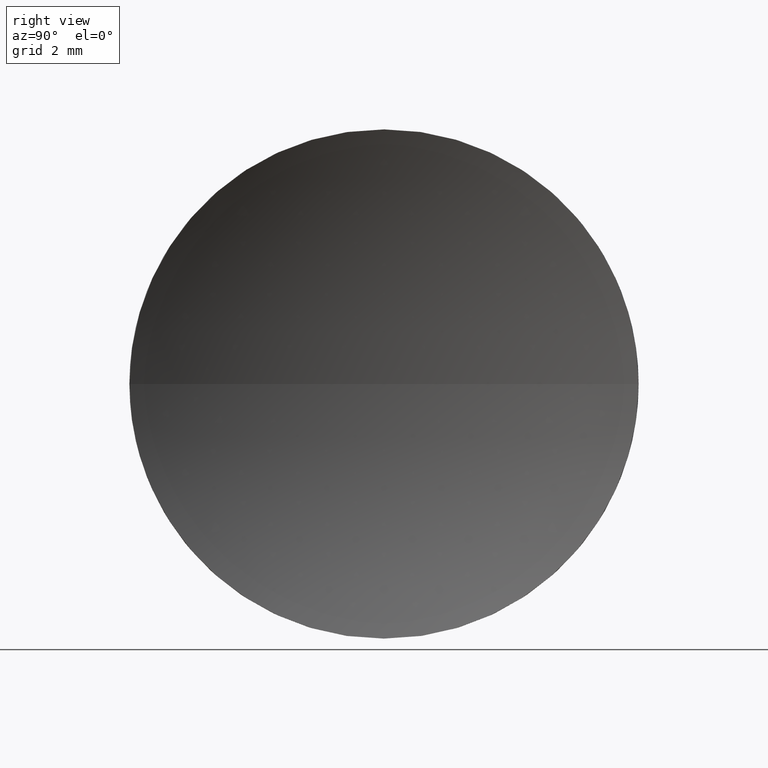
[diagram: clean part render]
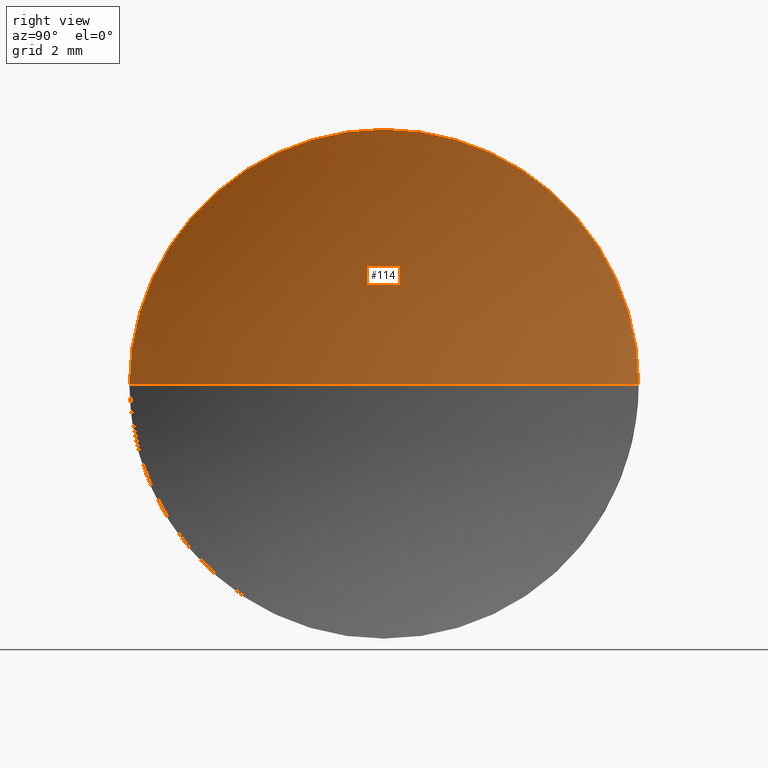
[diagram: same view with one face highlighted and labeled with its STEP entity id]
A machine part, right view. The second image highlights one B-rep face of the part: STEP entity #114.
In plain terms, the highlighted spherical surface has radius 12.8812 mm.
Its self-contained STEP definition (entity closure, byte-faithful):
#1 = EDGE_CURVE ( 'NONE', #11, #20, #21, .T. ) ;
#2 = CARTESIAN_POINT ( 'NONE',  ( 45.81958524454067600, 26.08904114919495900, 0.0000000000000000000 ) ) ;
#4 = EDGE_CURVE ( 'NONE', #20, #98, #167, .T. ) ;
#5 = ORIENTED_EDGE ( 'NONE', *, *, #84, .F. ) ;
#6 = CARTESIAN_POINT ( 'NONE',  ( 46.82958549791030100, 31.08904114919495500, 6.123233995736764300E-016 ) ) ;
#7 = DIRECTION ( 'NONE',  ( -1.000000000000000000, -0.0000000000000000000, -0.0000000000000000000 ) ) ;
#8 = CARTESIAN_POINT ( 'NONE',  ( 58.70081989027306700, 26.08904114919495900, 0.0000000000000000000 ) ) ;
#11 = VERTEX_POINT ( 'NONE', #87 ) ;
#15 = DIRECTION ( 'NONE',  ( 0.0000000000000000000, -1.000000000000000000, -1.224646799147353500E-016 ) ) ;
#19 = DIRECTION ( 'NONE',  ( 0.0000000000000000000, 0.0000000000000000000, 1.000000000000000000 ) ) ;
#20 = VERTEX_POINT ( 'NONE', #6 ) ;
#21 = CIRCLE ( 'NONE', #109, 5.000000000000000900 ) ;
#29 = AXIS2_PLACEMENT_3D ( 'NONE', #137, #48, #81 ) ;
#34 = CIRCLE ( 'NONE', #124, 5.000000000000000900 ) ;
#41 = DIRECTION ( 'NONE',  ( 0.0000000000000000000, 0.0000000000000000000, 1.000000000000000000 ) ) ;
#48 = DIRECTION ( 'NONE',  ( 0.0000000000000000000, 0.0000000000000000000, 1.000000000000000000 ) ) ;
#50 = CIRCLE ( 'NONE', #130, 12.88123464573238900 ) ;
#61 = CARTESIAN_POINT ( 'NONE',  ( 58.70081989027306700, 26.08904114919495900, 0.0000000000000000000 ) ) ;
#81 = DIRECTION ( 'NONE',  ( 0.0000000000000000000, -1.000000000000000000, 0.0000000000000000000 ) ) ;
#82 = SPHERICAL_SURFACE ( 'NONE', #29, 12.88123464573238900 ) ;
#84 = EDGE_CURVE ( 'NONE', #177, #11, #34, .T. ) ;
#87 = CARTESIAN_POINT ( 'NONE',  ( 46.82958549791030100, 26.08904114919495900, 5.000000000000000900 ) ) ;
#95 = EDGE_CURVE ( 'NONE', #177, #98, #50, .T. ) ;
#98 = VERTEX_POINT ( 'NONE', #2 ) ;
#105 = CARTESIAN_POINT ( 'NONE',  ( 46.82958549791030100, 26.08904114919495900, 0.0000000000000000000 ) ) ;
#106 = CARTESIAN_POINT ( 'NONE',  ( 46.82958549791030100, 26.08904114919495900, 0.0000000000000000000 ) ) ;
#109 = AXIS2_PLACEMENT_3D ( 'NONE', #105, #176, #41 ) ;
#113 = AXIS2_PLACEMENT_3D ( 'NONE', #61, #132, #15 ) ;
#114 = ADVANCED_FACE ( 'NONE', ( #128 ), #82, .F. ) ;
#120 = ORIENTED_EDGE ( 'NONE', *, *, #4, .F. ) ;
#122 = DIRECTION ( 'NONE',  ( -1.000000000000000000, 0.0000000000000000000, 0.0000000000000000000 ) ) ;
#124 = AXIS2_PLACEMENT_3D ( 'NONE', #106, #7, #19 ) ;
#128 = FACE_OUTER_BOUND ( 'NONE', #133, .T. ) ;
#130 = AXIS2_PLACEMENT_3D ( 'NONE', #8, #182, #122 ) ;
#132 = DIRECTION ( 'NONE',  ( 0.0000000000000000000, -1.224646799147353200E-016, 1.000000000000000000 ) ) ;
#133 = EDGE_LOOP ( 'NONE', ( #120, #144, #5, #141 ) ) ;
#137 = CARTESIAN_POINT ( 'NONE',  ( 58.70081989027306700, 26.08904114919495900, 0.0000000000000000000 ) ) ;
#141 = ORIENTED_EDGE ( 'NONE', *, *, #95, .T. ) ;
#144 = ORIENTED_EDGE ( 'NONE', *, *, #1, .F. ) ;
#152 = CARTESIAN_POINT ( 'NONE',  ( 46.82958549791030100, 21.08904114919496200, 0.0000000000000000000 ) ) ;
#167 = CIRCLE ( 'NONE', #113, 12.88123464573238900 ) ;
#176 = DIRECTION ( 'NONE',  ( -1.000000000000000000, -0.0000000000000000000, -0.0000000000000000000 ) ) ;
#177 = VERTEX_POINT ( 'NONE', #152 ) ;
#182 = DIRECTION ( 'NONE',  ( 0.0000000000000000000, 0.0000000000000000000, -1.000000000000000000 ) ) ;